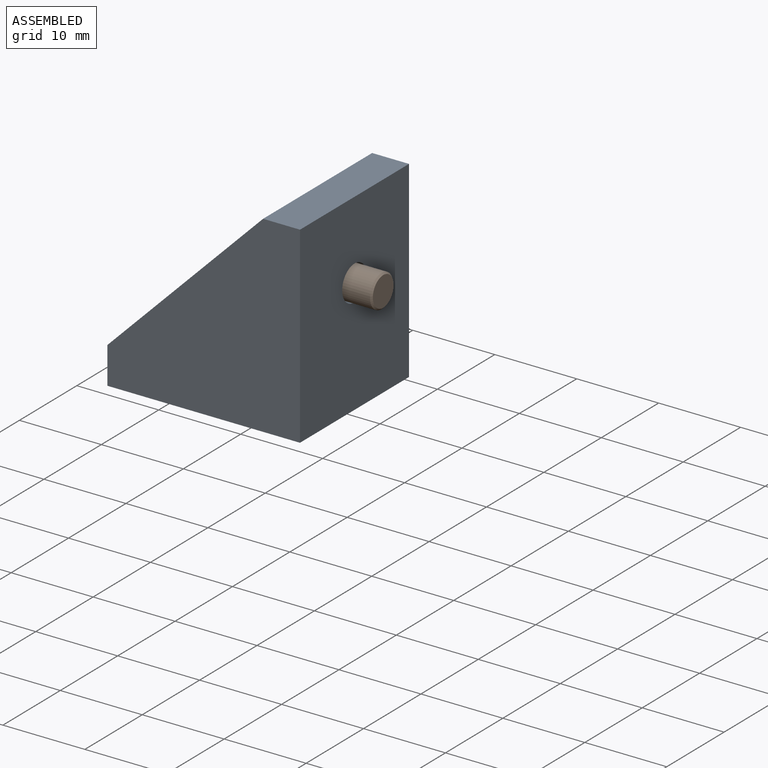
[diagram: assembled view]
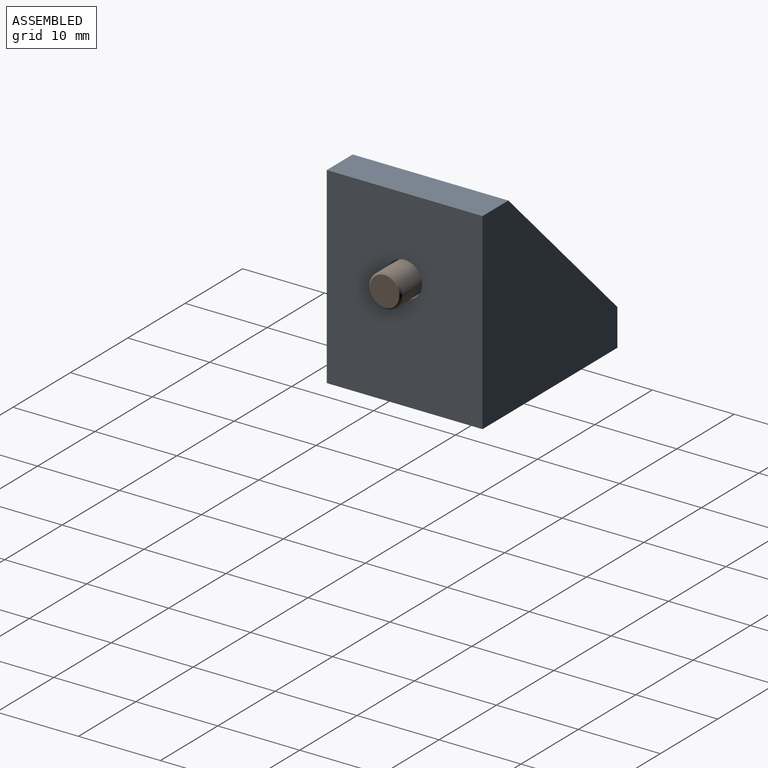
[diagram: assembled view, second angle]
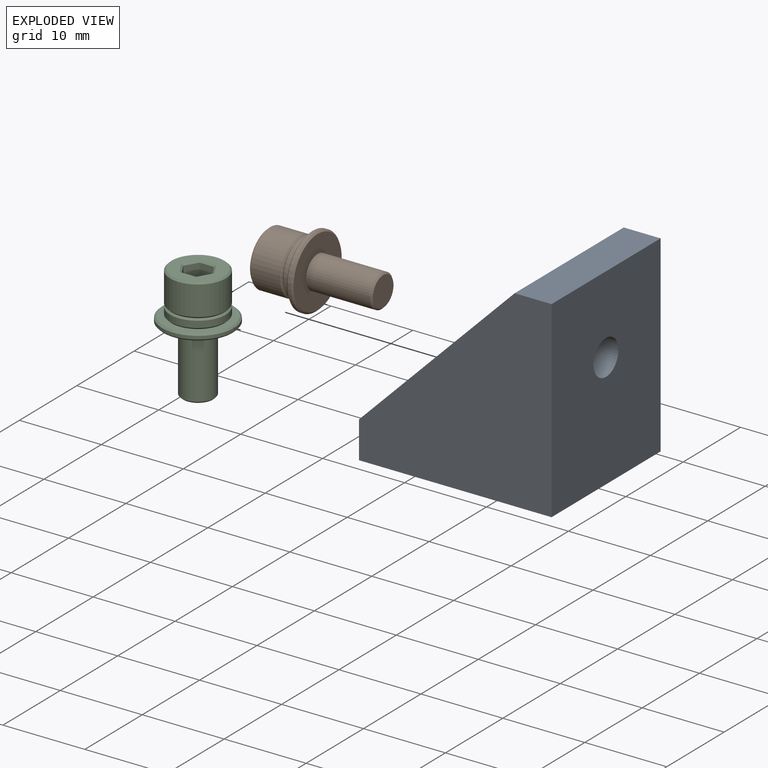
[diagram: exploded view]
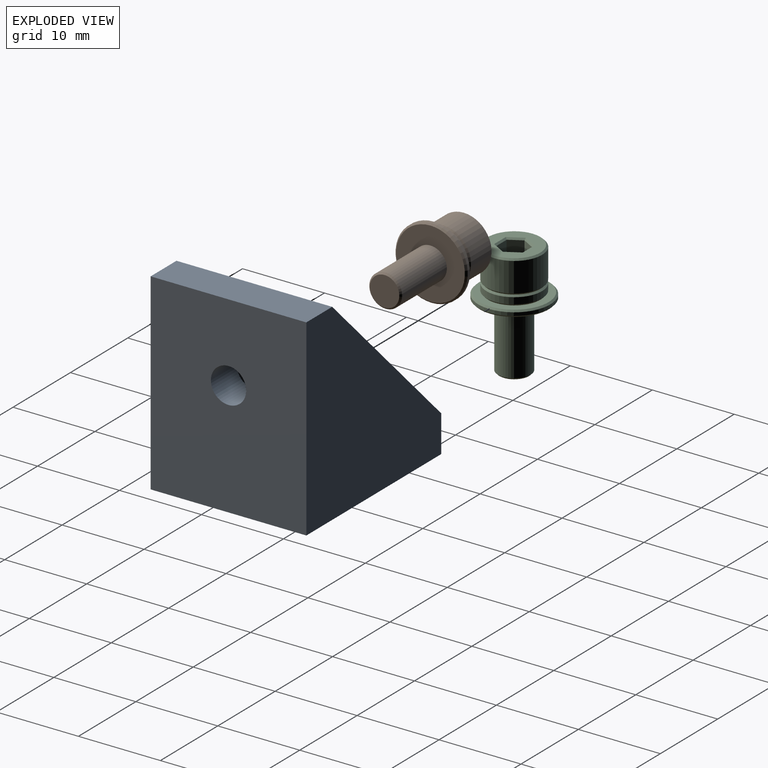
[diagram: exploded view, second angle]
ASSEMBLY  parts=3 mates=2
PART A: 14 faces, bbox 23.5x19x23.5 mm
  f0: plane 19x4.5mm, normal (-1,0,0), area 85.5mm2, adj f2,f3,f7,f9,f12,f13
  f1: cylinder r=2.15mm len=4.5mm, axis (0,0,-1), area 60.8mm2, adj f2,f3
  f2: plane 19x13mm, normal (0,0,1), area 232.5mm2, adj f0,f1,f4,f5,f6
  f3: plane 23.5x19mm, normal (0,0,-1), area 432mm2, adj f0,f1,f7,f8,f9
  f4: plane 19x19mm, normal (0,1,0), area 180.5mm2, adj f2,f5,f13
  f5: plane 19x13mm, normal (-1,0,0), area 232.5mm2, adj f2,f4,f6,f10,f11
  f6: plane 19x19mm, normal (0,-1,0), area 180.5mm2, adj f2,f5,f12
  f7: plane 23.5x23.5mm, normal (0,-1,0), area 371.7mm2, adj f0,f3,f8,f10,f13
  f8: plane 23.5x19mm, normal (1,0,0), area 432mm2, adj f3,f7,f9,f10,f11
  f9: plane 23.5x23.5mm, normal (0,1,0), area 371.7mm2, adj f0,f3,f8,f10,f12
  f10: plane 19x4.5mm, normal (0,0,1), area 85.5mm2, adj f5,f7,f8,f9,f12,f13
  f11: cylinder r=2.15mm len=4.5mm, axis (-1,0,0), area 60.8mm2, adj f5,f8
  f12: plane 19x19mm, normal (-0.71,0,0.71), area 80.6mm2, adj f0,f6,f9,f10
  f13: plane 19x19mm, normal (-0.71,0,0.71), area 80.6mm2, adj f0,f4,f7,f10
PART B: 28 faces, bbox 8.8x8.8x14 mm
  f0: plane 3.05x1.79mm, normal (0,1,0), area 5.5mm2, adj f1,f5,f8,f13
  f1: plane 3.05x1.55mm, normal (-0.87,0.5,0), area 5.5mm2, adj f0,f2,f8,f14
  f2: plane 3.05x1.55mm, normal (-0.87,-0.5,0), area 5.5mm2, adj f1,f3,f8,f12
  f3: plane 3.05x1.79mm, normal (0,-1,0), area 5.5mm2, adj f2,f4,f8,f10
  f4: plane 3.05x1.55mm, normal (0.87,-0.5,0), area 5.5mm2, adj f3,f5,f8,f9
  f5: plane 3.05x1.55mm, normal (0.87,0.5,0), area 5.5mm2, adj f0,f4,f8,f11
  f6: cylinder r=3.4mm len=6.8mm, axis (0,0,-1), area 76.9mm2, adj f15,f16
  f7: plane 6.4x6.4mm, normal (0,0,-1), area 21.6mm2, adj f9,f10,f11,f12,f13,f14,f15
  f8: plane 3.58x3.1mm, normal (0,0,-1), area 8.3mm2, adj f0,f1,f2,f3,f4,f5
  f9: plane 1.75x1.13mm, normal (0.61,-0.35,-0.71), area 0.5mm2, adj f4,f7,f10,f11
  f10: plane 2.02x0.2mm, normal (0,-0.71,-0.71), area 0.5mm2, adj f3,f7,f9,f12
  f11: plane 1.75x1.13mm, normal (0.61,0.35,-0.71), area 0.5mm2, adj f5,f7,f9,f13
  f12: plane 1.75x1.13mm, normal (-0.61,-0.35,-0.71), area 0.5mm2, adj f2,f7,f10,f14
  f13: plane 2.02x0.2mm, normal (0,0.71,-0.71), area 0.5mm2, adj f0,f7,f11,f14
  f14: plane 1.75x1.13mm, normal (-0.61,0.35,-0.71), area 0.5mm2, adj f1,f7,f12,f13
  f15: cone r=3.4mm half-angle=45deg, axis (0,0,1), area 5.9mm2, adj f6,f7
  f16: cone r=3.2mm half-angle=45deg, axis (0,0,-1), area 5.9mm2, adj f6,f18
  f17: cylinder r=3.4mm len=6.8mm, axis (0,0,-1), area 17.1mm2, adj f18,f19
  f18: cone r=3.4mm half-angle=45deg, axis (0,0,1), area 5.9mm2, adj f16,f17
  f19: cone r=3.2mm half-angle=45deg, axis (0,0,-1), area 5.9mm2, adj f17,f22
  f20: cylinder r=4.4mm len=8.8mm, axis (0,0,-1), area 11.1mm2, adj f26,f27
  f21: plane 8.4x8.4mm, normal (0,0,1), area 42.9mm2, adj f25,f26
  f22: plane 8.4x8.4mm, normal (0,0,-1), area 23.2mm2, adj f19,f27
  f23: plane 3.6x3.6mm, normal (0,0,1), area 10.2mm2, adj f24
  f24: cone r=1.8mm half-angle=45deg, axis (0,0,-1), area 3.4mm2, adj f23,f25
  f25: cylinder r=2mm len=7.8mm, axis (0,0,-1), area 98mm2, adj f21,f24
  f26: cone r=4.2mm half-angle=45deg, axis (0,0,-1), area 7.6mm2, adj f20,f21
  f27: cone r=4.4mm half-angle=45deg, axis (0,0,1), area 7.6mm2, adj f20,f22
PART C: same geometry as B
PLACE A t=(-3.67,-7.27,4.95)mm
PLACE B rot(axis=(-0.71,0,-0.71),180deg) t=(-14.17,-5.85,-3.76)mm
PLACE C rot(axis=(1,0,0),180deg) t=(-40.39,-5.85,15.45)mm
MATE fastened B.f6 <-> A.f11  axis (1,0,0) through (-8.17,2.23,18.95)mm
MATE fastened C.f6 <-> A.f1  axis (0,0,-1) through (-17.67,2.23,9.45)mm
